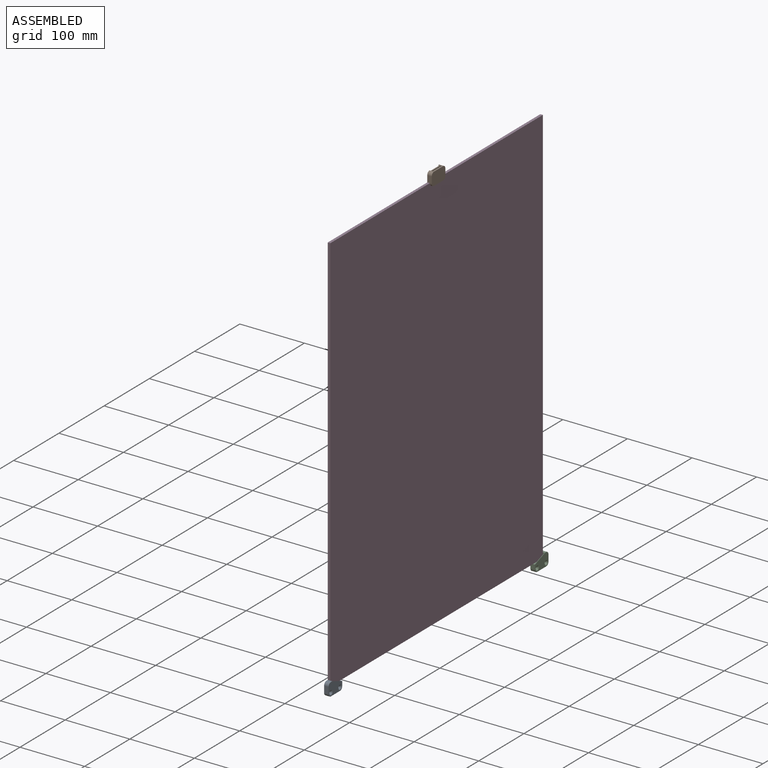
[diagram: assembled view]
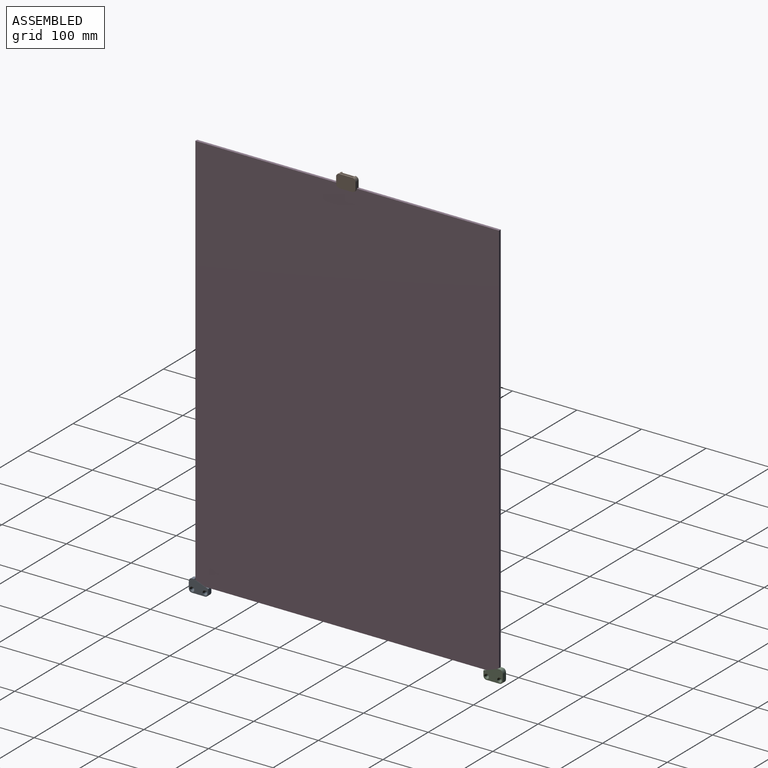
[diagram: assembled view, second angle]
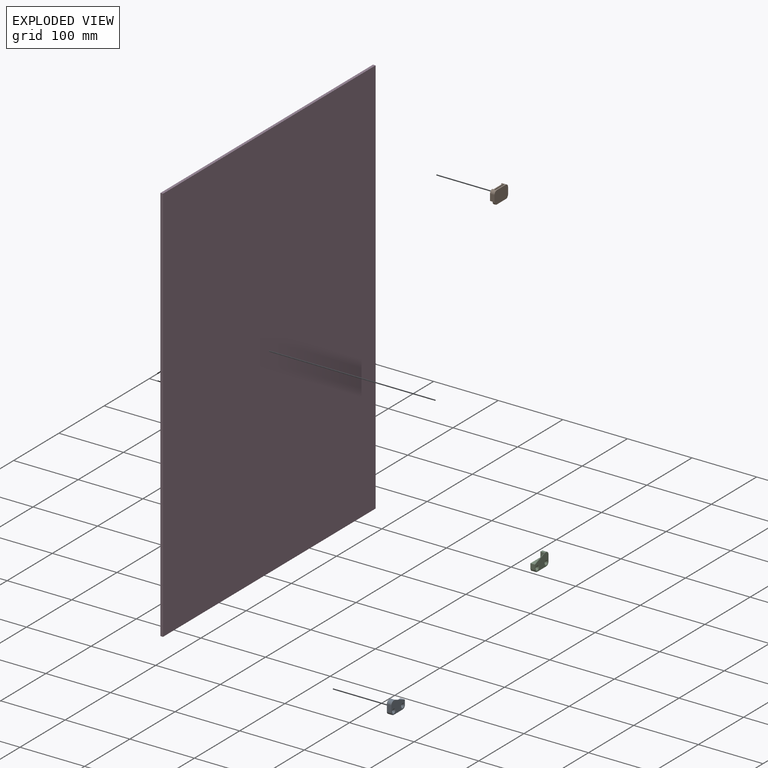
[diagram: exploded view]
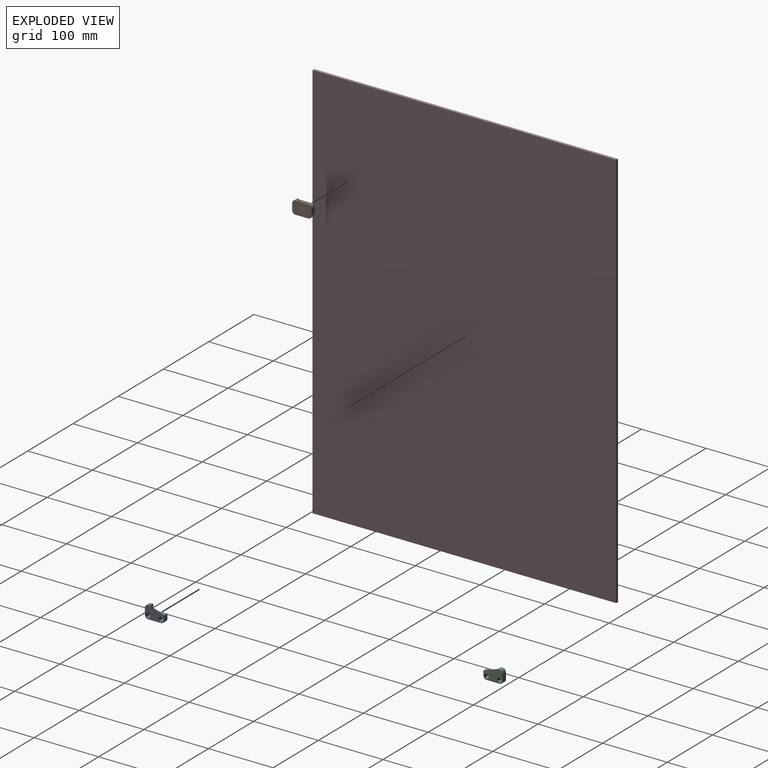
[diagram: exploded view, second angle]
ASSEMBLY  parts=4 mates=2
PART A: 17 faces, bbox 30x20x7 mm
  f0: plane 22x7mm, normal (0,1,0), area 99.2mm2, adj f1,f10,f11,f12,f14
  f1: plane 7x7mm, normal (-1,0,0), area 49mm2, adj f0,f2,f11,f13
  f2: cylinder r=5mm len=7mm, axis (0,0,-1), area 55mm2, adj f1,f3,f11,f13
  f3: plane 20x7mm, normal (0,-1,0), area 140mm2, adj f2,f4,f11,f13
  f4: cylinder r=5mm len=7mm, axis (0,0,-1), area 55mm2, adj f3,f5,f11,f13
  f5: plane 10x7mm, normal (1,0,0), area 70mm2, adj f4,f6,f11,f13
  f6: cylinder r=5mm len=7mm, axis (0,0,-1), area 55mm2, adj f5,f7,f11,f13
  f7: plane 7x3mm, normal (0,1,0), area 21mm2, adj f6,f10,f11,f13
  f8: cylinder r=1.5mm len=5mm, axis (0,0,-1), area 47.1mm2, adj f11,f15
  f9: cylinder r=1.5mm len=5mm, axis (0,0,-1), area 47.1mm2, adj f11,f16
  f10: plane 8x7mm, normal (-1,0,0), area 36.1mm2, adj f0,f7,f11,f12,f14
  f11: plane 30x20mm, normal (0,0,1), area 393.8mm2, adj f0,f1,f2,f3,f4,f5,f6,f7
  f12: plane 8.59x3.12mm, normal (0,0,1), area 13.4mm2, adj f0,f10,f14
  f13: plane 30x20mm, normal (0,0,-1), area 418.9mm2, adj f1,f2,f3,f4,f5,f6,f7,f14
  f14: cylinder r=5mm len=23.57mm, axis (-0.94,-0.34,0), area 99.7mm2, adj f0,f10,f12,f13
  f15: cone r=3.5mm half-angle=45deg, axis (0,0,-1), area 44.4mm2, adj f8,f13
  f16: cone r=3.5mm half-angle=45deg, axis (0,0,-1), area 44.4mm2, adj f9,f13
PART B: 22 faces, bbox 30x7x20 mm
  f0: plane 20x2mm, normal (0,0,1), area 40mm2, adj f6,f8,f20,f21
  f1: plane 30x4mm, normal (0,0,-1), area 120mm2, adj f5,f7,f12,f17
  f2: plane 10x1.8mm, normal (-1,0,0), area 18mm2, adj f3,f12,f15,f20
  f3: plane 20x10mm, normal (0,1,0), area 200mm2, adj f2,f4,f13,f15
  f4: plane 10x1.8mm, normal (1,0,0), area 18mm2, adj f3,f12,f15,f21
  f5: plane 10x7mm, normal (-1,0,0), area 70mm2, adj f1,f6,f12,f18,f21
  f6: plane 30x20mm, normal (0,-1,0), area 578.5mm2, adj f0,f5,f7,f16,f18,f19,f20,f21
  f7: plane 10x7mm, normal (1,0,0), area 70mm2, adj f1,f6,f12,f19,f20
  f8: plane 20x10mm, normal (0,1,0), area 200mm2, adj f0,f9,f11,f14
  f9: plane 10x1.8mm, normal (1,0,0), area 18mm2, adj f8,f10,f14,f21
  f10: plane 20x10mm, normal (0,-1,0), area 200mm2, adj f9,f11,f13,f14
  f11: plane 10x1.8mm, normal (-1,0,0), area 18mm2, adj f8,f10,f14,f20
  f12: plane 30x15mm, normal (0,1,0), area 239.3mm2, adj f1,f2,f4,f5,f7,f15,f20,f21
  f13: plane 20x1.4mm, normal (0,0,1), area 28mm2, adj f3,f10,f20,f21
  f14: plane 20x1.8mm, normal (0,0,1), area 36mm2, adj f8,f9,f10,f11
  f15: plane 20x1.8mm, normal (0,0,1), area 36mm2, adj f2,f3,f4,f12
  f16: plane 20x3mm, normal (0,0,-1), area 60mm2, adj f6,f17,f18,f19
  f17: plane 30x5mm, normal (0,1,0), area 139.3mm2, adj f1,f16,f18,f19
  f18: cylinder r=5mm len=5mm, axis (0,-1,0), area 23.6mm2, adj f5,f6,f16,f17
  f19: cylinder r=5mm len=5mm, axis (0,1,0), area 23.6mm2, adj f6,f7,f16,f17
  f20: cylinder r=5mm len=7mm, axis (0,-1,0), area 55mm2, adj f0,f2,f6,f7,f11,f12,f13
  f21: cylinder r=5mm len=7mm, axis (0,1,0), area 55mm2, adj f0,f4,f5,f6,f9,f12,f13
PART C: 17 faces, bbox 30x20x7 mm
  f0: plane 7x7mm, normal (1,0,0), area 49mm2, adj f1,f10,f11,f12
  f1: plane 22x7mm, normal (0,1,0), area 99.2mm2, adj f0,f2,f11,f13,f14
  f2: plane 8x7mm, normal (1,0,0), area 36.1mm2, adj f1,f3,f11,f13,f14
  f3: plane 7x3mm, normal (0,1,0), area 21mm2, adj f2,f4,f11,f12
  f4: cylinder r=5mm len=7mm, axis (0,0,-1), area 55mm2, adj f3,f5,f11,f12
  f5: plane 10x7mm, normal (-1,0,0), area 70mm2, adj f4,f6,f11,f12
  f6: cylinder r=5mm len=7mm, axis (0,0,-1), area 55mm2, adj f5,f7,f11,f12
  f7: plane 20x7mm, normal (0,-1,0), area 140mm2, adj f6,f10,f11,f12
  f8: cylinder r=1.5mm len=5mm, axis (0,0,-1), area 47.1mm2, adj f11,f15
  f9: cylinder r=1.5mm len=5mm, axis (0,0,-1), area 47.1mm2, adj f11,f16
  f10: cylinder r=5mm len=7mm, axis (0,0,-1), area 55mm2, adj f0,f7,f11,f12
  f11: plane 30x20mm, normal (0,0,1), area 393.8mm2, adj f0,f1,f2,f3,f4,f5,f6,f7
  f12: plane 30x20mm, normal (0,0,-1), area 418.9mm2, adj f0,f3,f4,f5,f6,f7,f10,f14
  f13: plane 8.59x3.12mm, normal (0,0,1), area 13.4mm2, adj f1,f2,f14
  f14: cylinder r=5mm len=23.57mm, axis (-0.94,0.34,0), area 99.7mm2, adj f1,f2,f12,f13
  f15: cone r=3.5mm half-angle=45deg, axis (0,0,-1), area 44.4mm2, adj f8,f12
  f16: cone r=3.5mm half-angle=45deg, axis (0,0,-1), area 44.4mm2, adj f9,f12
PART D: 6 faces, bbox 4x470x620 mm
  f0: plane 620x4mm, normal (0,-1,0), area 2480mm2, adj f1,f3,f4,f5
  f1: plane 470x4mm, normal (0,0,-1), area 1880mm2, adj f0,f2,f4,f5
  f2: plane 620x4mm, normal (0,1,0), area 2480mm2, adj f1,f3,f4,f5
  f3: plane 470x4mm, normal (0,0,1), area 1880mm2, adj f0,f2,f4,f5
  f4: plane 620x470mm, normal (1,0,0), area 291400mm2, adj f0,f1,f2,f3
  f5: plane 620x470mm, normal (-1,0,0), area 291400mm2, adj f0,f1,f2,f3
PLACE A rot(axis=(0.58,-0.58,-0.58),120deg) t=(-252.6,-404.62,-244.24)mm
PLACE B rot(axis=(0,0,1),90deg) t=(-248.59,-244.45,357.7)mm
PLACE C rot(axis=(0.58,-0.58,-0.58),120deg) t=(-252.6,7.97,-244.24)mm
PLACE D t=(-256.6,-458.44,-207.35)mm
MATE fastened C.f13 <-> D.f4  axis (-1,0,0) through (-252.6,2.76,-267.3)mm
MATE fastened A.f12 <-> D.f4  axis (-1,0,0) through (-252.6,-467.24,-267.3)mm
